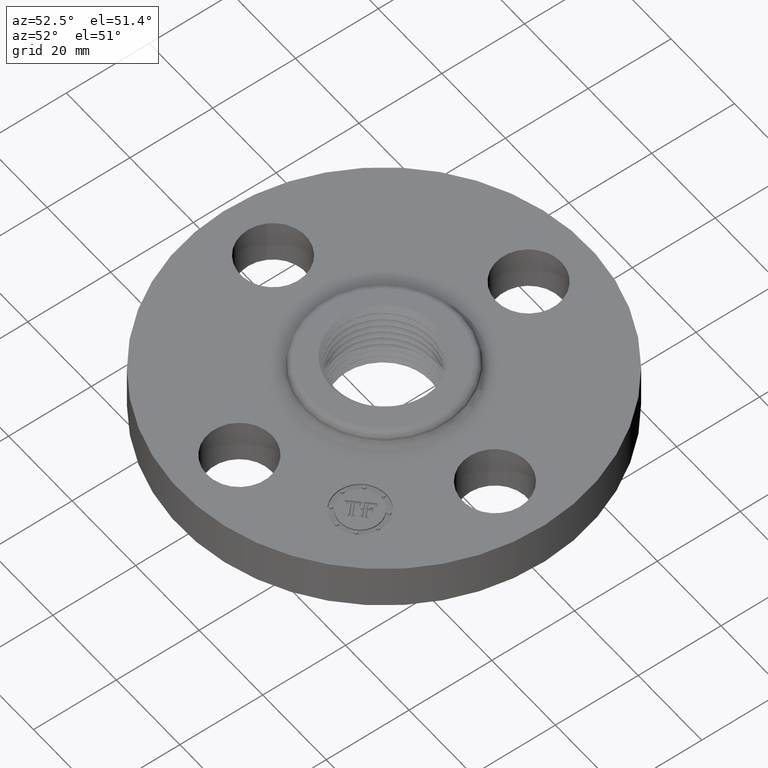
[diagram: clean part render]
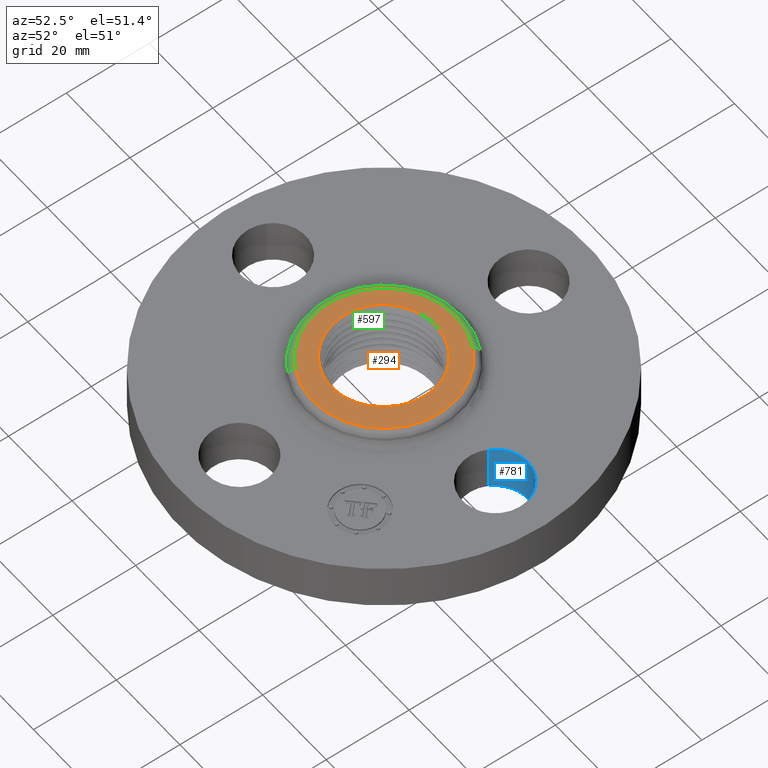
[diagram: same view with three faces highlighted in distinct colors, each labeled with its STEP entity id]
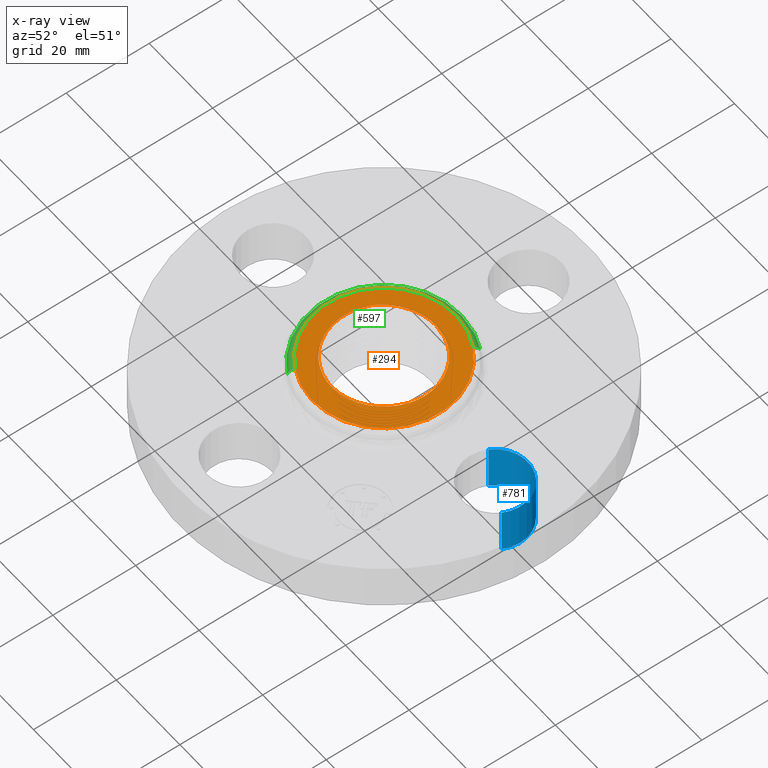
[diagram: x-ray of the same camera — body ghosted, the three highlighted faces saturated]
A machine part, auxiliary view with three faces highlighted in distinct colors.
The next image is the same camera in x-ray (body ghosted, the three faces saturated) — at least one of them is partly hidden behind the body in this view.
Their STEP definitions:

[orange] entity #294 — the highlighted planar face has unit normal (0, 0, -1).
#168=AXIS2_PLACEMENT_3D('Plane Axis2P3D',#165,#166,#167) ;
#172=AXIS2_PLACEMENT_3D('Circle Axis2P3D',#170,#171,$) ;
#181=AXIS2_PLACEMENT_3D('Circle Axis2P3D',#179,#180,$) ;
#190=AXIS2_PLACEMENT_3D('Circle Axis2P3D',#188,#189,$) ;
#165=CARTESIAN_POINT('Axis2P3D Location',(0.,0.678494784447,0.560000000002)) ;
#170=CARTESIAN_POINT('Axis2P3D Location',(0.,0.,0.560000000002)) ;
#174=CARTESIAN_POINT('Vertex',(0.325287727474,0.595435191164,0.560000000002)) ;
#176=CARTESIAN_POINT('Vertex',(-0.325287727474,-0.595435191164,0.560000000002)) ;
#179=CARTESIAN_POINT('Axis2P3D Location',(0.,0.,0.560000000002)) ;
#188=CARTESIAN_POINT('Axis2P3D Location',(6.99353086378E-017,0.,0.560000000002)) ;
#192=CARTESIAN_POINT('Vertex',(0.391863531513,-0.250914233593,0.559999778049)) ;
#194=CARTESIAN_POINT('Vertex',(0.351204714222,-0.305238003516,0.560000126479)) ;
#198=CARTESIAN_POINT('Control Point',(0.226344679331,-0.414319966656,0.560000000002)) ;
#199=CARTESIAN_POINT('Control Point',(0.255042736471,-0.397096351268,0.560000000002)) ;
#200=CARTESIAN_POINT('Control Point',(0.282158438263,-0.377360411882,0.560000000002)) ;
#201=CARTESIAN_POINT('Control Point',(0.307390917301,-0.35530292757,0.560000000002)) ;
#202=CARTESIAN_POINT('Control Point',(0.330476779068,-0.331168256274,0.560000000002)) ;
#203=CARTESIAN_POINT('Control Point',(0.351204616314,-0.305237919019,0.560000000002)) ;
#204=CARTESIAN_POINT('Vertex',(0.226344679331,-0.414319966656,0.560000000002)) ;
#208=CARTESIAN_POINT('Control Point',(4.97204489898E-007,-0.481690609613,0.560000000002)) ;
#209=CARTESIAN_POINT('Control Point',(0.0479381716018,-0.479784717995,0.560000000002)) ;
#210=CARTESIAN_POINT('Control Point',(0.0955147004757,-0.471910899089,0.560000000002)) ;
#211=CARTESIAN_POINT('Control Point',(0.141755459627,-0.458123384693,0.560000000002)) ;
#212=CARTESIAN_POINT('Control Point',(0.185641610608,-0.438748589055,0.560000000002)) ;
#213=CARTESIAN_POINT('Control Point',(0.226344679331,-0.414319966656,0.560000000002)) ;
#214=CARTESIAN_POINT('Vertex',(4.97204489828E-007,-0.481690609613,0.560000000002)) ;
#218=CARTESIAN_POINT('Control Point',(-0.460031657399,0.244861026374,0.560000000002)) ;
#219=CARTESIAN_POINT('Control Point',(-0.480507901466,0.202730017697,0.560000000002)) ;
#220=CARTESIAN_POINT('Control Point',(-0.496205775713,0.158382442277,0.560000000002)) ;
#221=CARTESIAN_POINT('Control Point',(-0.506794230067,0.112528700508,0.560000000002)) ;
#222=CARTESIAN_POINT('Control Point',(-0.515280180205,0.0380369690904,0.560000000002)) ;
#223=CARTESIAN_POINT('Control Point',(-0.510271513155,-0.0362354771787,0.560000000002)) ;
#224=CARTESIAN_POINT('Control Point',(-0.506498869833,-0.0638793718352,0.560000000002)) ;
#225=CARTESIAN_POINT('Control Point',(-0.491457172125,-0.136583077936,0.560000000002)) ;
#226=CARTESIAN_POINT('Control Point',(-0.463485029919,-0.20541823441,0.560000000002)) ;
#227=CARTESIAN_POINT('Control Point',(-0.441184570556,-0.246148940921,0.560000000002)) ;
#228=CARTESIAN_POINT('Control Point',(-0.387768737801,-0.32161175282,0.560000000002)) ;
#229=CARTESIAN_POINT('Control Point',(-0.318938892294,-0.382700341066,0.560000000002)) ;
#230=CARTESIAN_POINT('Control Point',(-0.281209483818,-0.40906974061,0.560000000002)) ;
#231=CARTESIAN_POINT('Control Point',(-0.204648448625,-0.450292359471,0.560000000002)) ;
#232=CARTESIAN_POINT('Control Point',(-0.121406245325,-0.473749724189,0.560000000002)) ;
#233=CARTESIAN_POINT('Control Point',(-0.0810820011477,-0.480662653261,0.560000000002)) ;
#234=CARTESIAN_POINT('Control Point',(-0.0404124384212,-0.483297335009,0.560000000002)) ;
#235=CARTESIAN_POINT('Control Point',(4.9720449058E-007,-0.481690609613,0.560000000002)) ;
#236=CARTESIAN_POINT('Vertex',(-0.460031658219,0.24486102851,0.560000000002)) ;
#240=CARTESIAN_POINT('Control Point',(-0.460031658219,0.24486102851,0.560000000002)) ;
#241=CARTESIAN_POINT('Control Point',(-0.439395542402,0.280706242821,0.560000000002)) ;
#242=CARTESIAN_POINT('Control Point',(-0.41523216344,0.314449708221,0.560000000002)) ;
#243=CARTESIAN_POINT('Control Point',(-0.387815763954,0.345626393563,0.560000000002)) ;
#244=CARTESIAN_POINT('Control Point',(-0.343622701461,0.38674891132,0.560000000002)) ;
#245=CARTESIAN_POINT('Control Point',(-0.294235891322,0.420828413715,0.560000000002)) ;
#246=CARTESIAN_POINT('Control Point',(-0.278237507888,0.430815354711,0.560000000002)) ;
#247=CARTESIAN_POINT('Control Point',(-0.26181409378,0.440046490144,0.560000000002)) ;
#248=CARTESIAN_POINT('Control Point',(-0.245014045043,0.448498201118,0.560000000002)) ;
#249=CARTESIAN_POINT('Vertex',(-0.245014045043,0.448498201118,0.560000000002)) ;
#253=CARTESIAN_POINT('Control Point',(-0.245014045043,0.448498201118,0.560000000002)) ;
#254=CARTESIAN_POINT('Control Point',(-0.204031342493,0.469115638672,0.560000000002)) ;
#255=CARTESIAN_POINT('Control Point',(-0.160807367777,0.485094794094,0.560000000002)) ;
#256=CARTESIAN_POINT('Control Point',(-0.116022572328,0.496099837526,0.560000000002)) ;
#257=CARTESIAN_POINT('Control Point',(-0.065486046242,0.502587401813,0.560000000002)) ;
#258=CARTESIAN_POINT('Control Point',(-0.0149594080922,0.502726753675,0.560000000002)) ;
#259=CARTESIAN_POINT('Control Point',(-0.00996890744653,0.502678573834,0.560000000002)) ;
#260=CARTESIAN_POINT('Control Point',(-0.00498185379614,0.502568504202,0.560000000002)) ;
#261=CARTESIAN_POINT('Control Point',(2.04126842091E-006,0.502396594466,0.560000000002)) ;
#262=CARTESIAN_POINT('Vertex',(2.04126842091E-006,0.502396594466,0.560000000002)) ;
#266=CARTESIAN_POINT('Control Point',(2.04126842082E-006,0.502396594466,0.560000000002)) ;
#267=CARTESIAN_POINT('Control Point',(0.0459775340205,0.500810759672,0.560000000002)) ;
#268=CARTESIAN_POINT('Control Point',(0.0916843266354,0.493962522728,0.560000000002)) ;
#269=CARTESIAN_POINT('Control Point',(0.136309440754,0.481892007417,0.560000000002)) ;
#270=CARTESIAN_POINT('Control Point',(0.221814198183,0.447769109125,0.560000000002)) ;
#271=CARTESIAN_POINT('Control Point',(0.296986171367,0.395277971045,0.560000000002)) ;
#272=CARTESIAN_POINT('Control Point',(0.331292610041,0.364828967155,0.560000000002)) ;
#273=CARTESIAN_POINT('Control Point',(0.386006755196,0.303489271273,0.560000000002)) ;
#274=CARTESIAN_POINT('Control Point',(0.426588150174,0.232559446644,0.560000000002)) ;
#275=CARTESIAN_POINT('Control Point',(0.441594950572,0.199491401039,0.560000000002)) ;
#276=CARTESIAN_POINT('Control Point',(0.468158670102,0.122495030374,0.560000000002)) ;
#277=CARTESIAN_POINT('Control Point',(0.478053849651,0.0417527080964,0.560000000002)) ;
#278=CARTESIAN_POINT('Control Point',(0.478222548029,-0.0034425949614,0.560000000002)) ;
#279=CARTESIAN_POINT('Control Point',(0.469017651408,-0.0834513516544,0.560000000002)) ;
#280=CARTESIAN_POINT('Control Point',(0.443459701288,-0.159255467692,0.560000000002)) ;
#281=CARTESIAN_POINT('Control Point',(0.429088876542,-0.191512279118,0.560000000002)) ;
#282=CARTESIAN_POINT('Control Point',(0.411810035499,-0.222176008392,0.560000000002)) ;
#283=CARTESIAN_POINT('Control Point',(0.391863250116,-0.250914059756,0.560000000002)) ;
#166=DIRECTION('Axis2P3D Direction',(0.,0.,-0.0393700787402)) ;
#167=DIRECTION('Axis2P3D XDirection',(0.0393700787402,0.,0.)) ;
#171=DIRECTION('Axis2P3D Direction',(0.,0.,-0.0393700787402)) ;
#180=DIRECTION('Axis2P3D Direction',(0.,0.,-0.0393700787402)) ;
#189=DIRECTION('Axis2P3D Direction',(0.,0.,-0.0393700787402)) ;
#185=ORIENTED_EDGE('',*,*,#178,.F.) ;
#186=ORIENTED_EDGE('',*,*,#183,.F.) ;
#286=ORIENTED_EDGE('',*,*,#196,.T.) ;
#287=ORIENTED_EDGE('',*,*,#206,.F.) ;
#288=ORIENTED_EDGE('',*,*,#216,.F.) ;
#289=ORIENTED_EDGE('',*,*,#238,.F.) ;
#290=ORIENTED_EDGE('',*,*,#251,.T.) ;
#291=ORIENTED_EDGE('',*,*,#264,.T.) ;
#292=ORIENTED_EDGE('',*,*,#284,.T.) ;
#293=FACE_BOUND('',#285,.T.) ;
#294=ADVANCED_FACE('PartBody',(#187,#293),#169,.F.) ;
#197=B_SPLINE_CURVE_WITH_KNOTS('',5,(#198,#199,#200,#201,#202,#203),.UNSPECIFIED.,.F.,.U.,(6,6),(0.,6.15601140791),.UNSPECIFIED.) ;
#207=B_SPLINE_CURVE_WITH_KNOTS('',5,(#208,#209,#210,#211,#212,#213),.UNSPECIFIED.,.F.,.U.,(6,6),(0.,8.73120275315),.UNSPECIFIED.) ;
#217=B_SPLINE_CURVE_WITH_KNOTS('',5,(#218,#219,#220,#221,#222,#223,#224,#225,#226,#227,#228,#229,#230,#231,#232,#233,#234,#235),.UNSPECIFIED.,.F.,.U.,(6,3,3,3,3,6),(0.,8.19977872316,13.1181075829,21.3134453033,29.5124924292,36.8731652037),.UNSPECIFIED.) ;
#239=B_SPLINE_CURVE_WITH_KNOTS('',5,(#240,#241,#242,#243,#244,#245,#246,#247,#248),.UNSPECIFIED.,.F.,.U.,(6,3,6),(0.,7.23987804111,10.5600196731),.UNSPECIFIED.) ;
#252=B_SPLINE_CURVE_WITH_KNOTS('',5,(#253,#254,#255,#256,#257,#258,#259,#260,#261),.UNSPECIFIED.,.F.,.U.,(6,3,6),(0.,8.09928464797,8.98688295662),.UNSPECIFIED.) ;
#265=B_SPLINE_CURVE_WITH_KNOTS('',5,(#266,#267,#268,#269,#270,#271,#272,#273,#274,#275,#276,#277,#278,#279,#280,#281,#282,#283),.UNSPECIFIED.,.F.,.U.,(6,3,3,3,3,6),(0.,8.18792712761,16.3788755028,22.9295259937,31.1160830656,37.5889839529),.UNSPECIFIED.) ;
#173=CIRCLE('generated circle',#172,0.678494784447) ;
#182=CIRCLE('generated circle',#181,0.678494784447) ;
#191=CIRCLE('generated circle',#190,0.465311708862) ;
#178=EDGE_CURVE('',#175,#177,#173,.T.) ;
#183=EDGE_CURVE('',#177,#175,#182,.T.) ;
#196=EDGE_CURVE('',#193,#195,#191,.T.) ;
#206=EDGE_CURVE('',#205,#195,#197,.T.) ;
#216=EDGE_CURVE('',#215,#205,#207,.T.) ;
#238=EDGE_CURVE('',#237,#215,#217,.T.) ;
#251=EDGE_CURVE('',#237,#250,#239,.T.) ;
#264=EDGE_CURVE('',#250,#263,#252,.T.) ;
#284=EDGE_CURVE('',#263,#193,#265,.T.) ;
#184=EDGE_LOOP('',(#185,#186)) ;
#285=EDGE_LOOP('',(#286,#287,#288,#289,#290,#291,#292)) ;
#187=FACE_OUTER_BOUND('',#184,.T.) ;
#169=PLANE('',#168) ;
#175=VERTEX_POINT('',#174) ;
#177=VERTEX_POINT('',#176) ;
#193=VERTEX_POINT('',#192) ;
#195=VERTEX_POINT('',#194) ;
#205=VERTEX_POINT('',#204) ;
#215=VERTEX_POINT('',#214) ;
#237=VERTEX_POINT('',#236) ;
#250=VERTEX_POINT('',#249) ;
#263=VERTEX_POINT('',#262) ;

[blue] entity #781 — the highlighted cylindrical surface (partial cylindrical patch) has radius 7.874 mm, axis along (0, -0, -1).
#500=AXIS2_PLACEMENT_3D('Circle Axis2P3D',#498,#499,$) ;
#742=AXIS2_PLACEMENT_3D('Cylinder Axis2P3D',#739,#740,#741) ;
#772=AXIS2_PLACEMENT_3D('Circle Axis2P3D',#770,#771,$) ;
#493=CARTESIAN_POINT('Vertex',(1.64705059419,-0.148621916968,0.)) ;
#495=CARTESIAN_POINT('Vertex',(1.10294940582,0.148621916968,0.)) ;
#498=CARTESIAN_POINT('Axis2P3D Location',(1.37500000001,1.39870617276E-016,0.)) ;
#739=CARTESIAN_POINT('Axis2P3D Location',(1.37500000001,0.,0.436062992128)) ;
#744=CARTESIAN_POINT('Line Origine',(1.64705059419,-0.148621916968,0.220000000001)) ;
#748=CARTESIAN_POINT('Vertex',(1.64705059419,-0.148621916968,0.440000000002)) ;
#751=CARTESIAN_POINT('Line Origine',(1.10294940582,0.148621916968,0.220000000001)) ;
#755=CARTESIAN_POINT('Vertex',(1.10294940582,0.148621916968,0.440000000002)) ;
#770=CARTESIAN_POINT('Axis2P3D Location',(1.37500000001,0.,0.440000000002)) ;
#499=DIRECTION('Axis2P3D Direction',(0.,0.,-0.0393700787402)) ;
#740=DIRECTION('Axis2P3D Direction',(0.,-0.,-0.0393700787402)) ;
#741=DIRECTION('Axis2P3D XDirection',(-0.0345504945626,0.0188750212049,0.)) ;
#745=DIRECTION('Vector Direction',(0.,0.,-0.0393700787402)) ;
#752=DIRECTION('Vector Direction',(0.,0.,-0.0393700787402)) ;
#771=DIRECTION('Axis2P3D Direction',(0.,-0.,-0.0393700787402)) ;
#746=VECTOR('Line Direction',#745,0.0393700787402) ;
#753=VECTOR('Line Direction',#752,0.0393700787402) ;
#776=ORIENTED_EDGE('',*,*,#757,.F.) ;
#777=ORIENTED_EDGE('',*,*,#502,.T.) ;
#778=ORIENTED_EDGE('',*,*,#750,.T.) ;
#779=ORIENTED_EDGE('',*,*,#774,.F.) ;
#781=ADVANCED_FACE('PartBody',(#780),#743,.F.) ;
#501=CIRCLE('generated circle',#500,0.310000000001) ;
#773=CIRCLE('generated circle',#772,0.310000000001) ;
#743=CYLINDRICAL_SURFACE('generated cylinder',#742,0.310000000001) ;
#502=EDGE_CURVE('',#496,#494,#501,.T.) ;
#750=EDGE_CURVE('',#494,#749,#747,.F.) ;
#757=EDGE_CURVE('',#496,#756,#754,.F.) ;
#774=EDGE_CURVE('',#756,#749,#773,.T.) ;
#775=EDGE_LOOP('',(#776,#777,#778,#779)) ;
#780=FACE_OUTER_BOUND('',#775,.T.) ;
#747=LINE('Line',#744,#746) ;
#754=LINE('Line',#751,#753) ;
#494=VERTEX_POINT('',#493) ;
#496=VERTEX_POINT('',#495) ;
#749=VERTEX_POINT('',#748) ;
#756=VERTEX_POINT('',#755) ;

[green] entity #597 — the highlighted toroidal blend (fillet) surface has major radius 17.2338 mm and minor (blend) radius 1.524 mm.
#181=AXIS2_PLACEMENT_3D('Circle Axis2P3D',#179,#180,$) ;
#570=AXIS2_PLACEMENT_3D('Torus Axis2P3D',#567,#568,#569) ;
#574=AXIS2_PLACEMENT_3D('Circle Axis2P3D',#572,#573,$) ;
#583=AXIS2_PLACEMENT_3D('Circle Axis2P3D',#581,#582,$) ;
#588=AXIS2_PLACEMENT_3D('Circle Axis2P3D',#586,#587,$) ;
#174=CARTESIAN_POINT('Vertex',(0.325287727474,0.595435191164,0.560000000002)) ;
#176=CARTESIAN_POINT('Vertex',(-0.325287727474,-0.595435191164,0.560000000002)) ;
#179=CARTESIAN_POINT('Axis2P3D Location',(0.,0.,0.560000000002)) ;
#567=CARTESIAN_POINT('Axis2P3D Location',(0.,0.,0.500000000002)) ;
#572=CARTESIAN_POINT('Axis2P3D Location',(0.,0.,0.510418890662)) ;
#576=CARTESIAN_POINT('Vertex',(-0.353616246718,-0.647290197816,0.510418890662)) ;
#578=CARTESIAN_POINT('Vertex',(0.353616246718,0.647290197816,0.510418890662)) ;
#581=CARTESIAN_POINT('Axis2P3D Location',(-0.325287727474,-0.595435191164,0.500000000002)) ;
#586=CARTESIAN_POINT('Axis2P3D Location',(0.325287727474,0.595435191164,0.500000000002)) ;
#180=DIRECTION('Axis2P3D Direction',(0.,0.,-0.0393700787402)) ;
#568=DIRECTION('Axis2P3D Direction',(0.,0.,-0.0393700787402)) ;
#569=DIRECTION('Axis2P3D XDirection',(0.0188750212049,0.0345504945626,0.)) ;
#573=DIRECTION('Axis2P3D Direction',(0.,0.,-0.0393700787402)) ;
#582=DIRECTION('Axis2P3D Direction',(0.0345504945626,-0.0188750212049,0.)) ;
#587=DIRECTION('Axis2P3D Direction',(-0.0345504945626,0.0188750212049,0.)) ;
#592=ORIENTED_EDGE('',*,*,#580,.F.) ;
#593=ORIENTED_EDGE('',*,*,#585,.T.) ;
#594=ORIENTED_EDGE('',*,*,#183,.T.) ;
#595=ORIENTED_EDGE('',*,*,#590,.F.) ;
#597=ADVANCED_FACE('PartBody',(#596),#571,.T.) ;
#182=CIRCLE('generated circle',#181,0.678494784447) ;
#575=CIRCLE('generated circle',#574,0.737583249628) ;
#584=CIRCLE('generated circle',#583,0.0600000000002) ;
#589=CIRCLE('generated circle',#588,0.0600000000002) ;
#571=TOROIDAL_SURFACE('homeo Torus',#570,0.678494784447,0.0600000000002) ;
#183=EDGE_CURVE('',#177,#175,#182,.T.) ;
#580=EDGE_CURVE('',#577,#579,#575,.T.) ;
#585=EDGE_CURVE('',#577,#177,#584,.F.) ;
#590=EDGE_CURVE('',#579,#175,#589,.F.) ;
#591=EDGE_LOOP('',(#592,#593,#594,#595)) ;
#596=FACE_OUTER_BOUND('',#591,.T.) ;
#175=VERTEX_POINT('',#174) ;
#177=VERTEX_POINT('',#176) ;
#577=VERTEX_POINT('',#576) ;
#579=VERTEX_POINT('',#578) ;